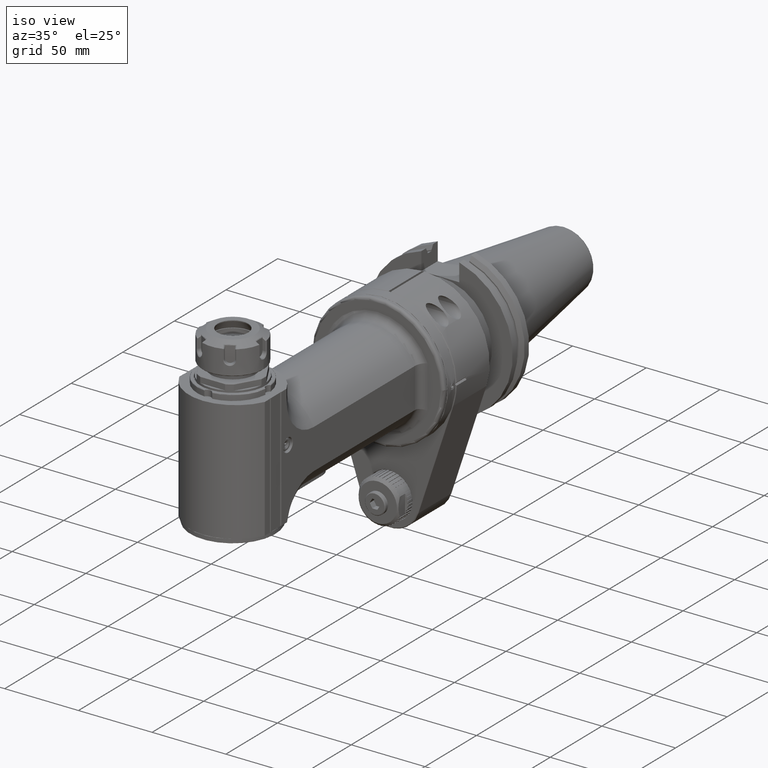
[diagram: clean part render]
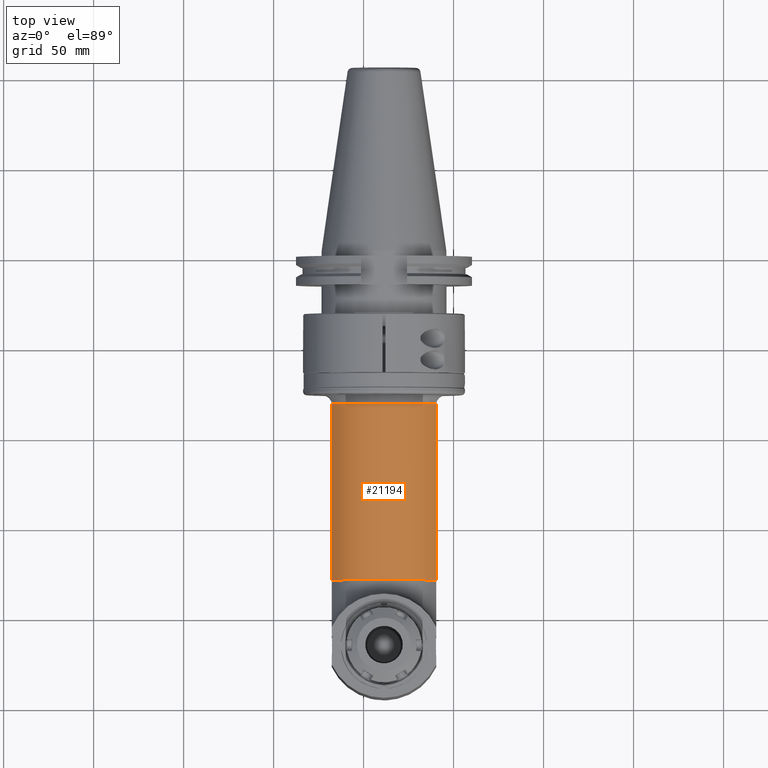
[diagram: tour spotlight — one face highlighted and labeled with its STEP entity id]
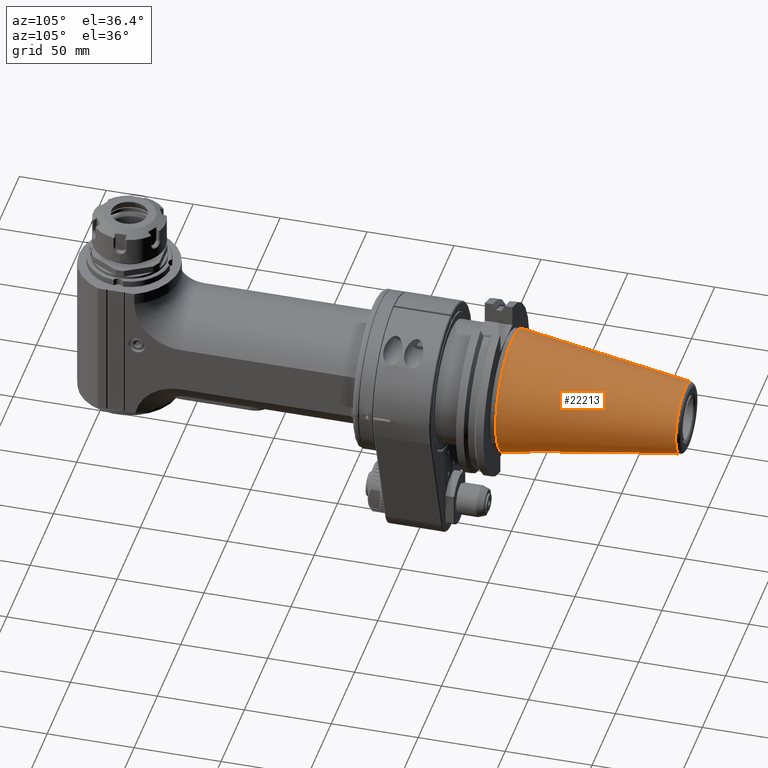
[diagram: tour spotlight — one face highlighted and labeled with its STEP entity id]
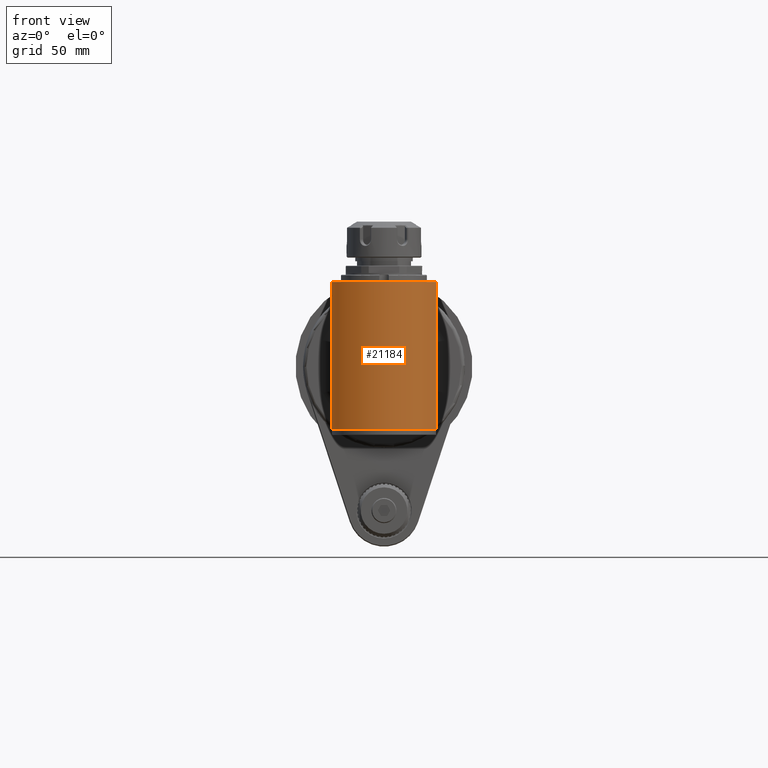
[diagram: tour spotlight — one face highlighted and labeled with its STEP entity id]
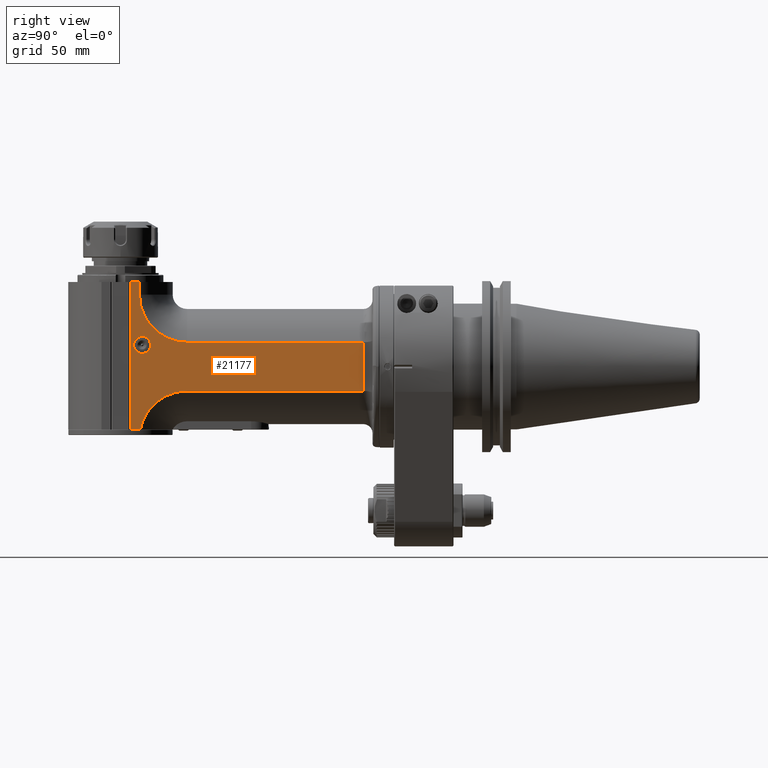
[diagram: tour spotlight — one face highlighted and labeled with its STEP entity id]
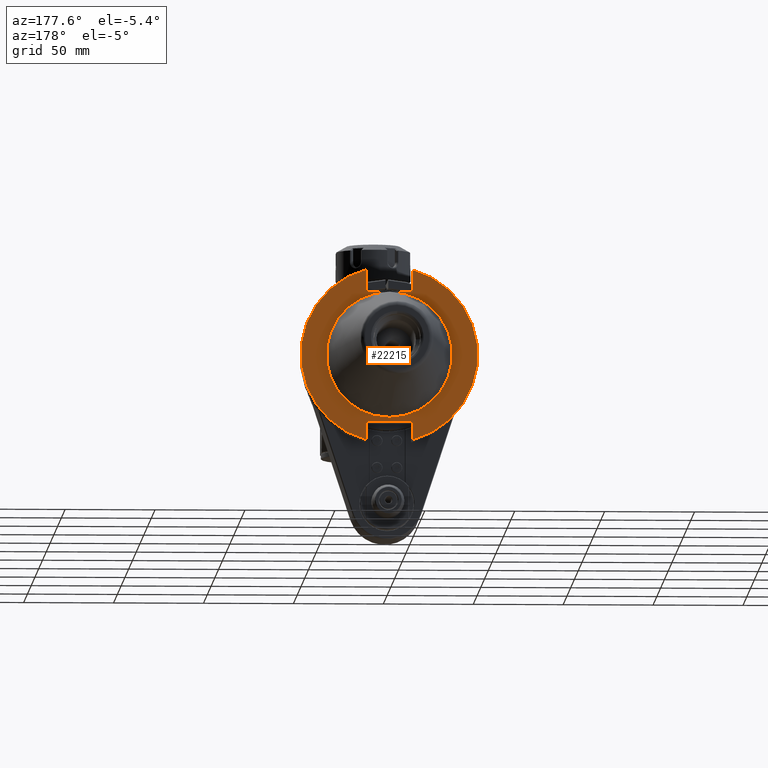
[diagram: tour spotlight — one face highlighted and labeled with its STEP entity id]
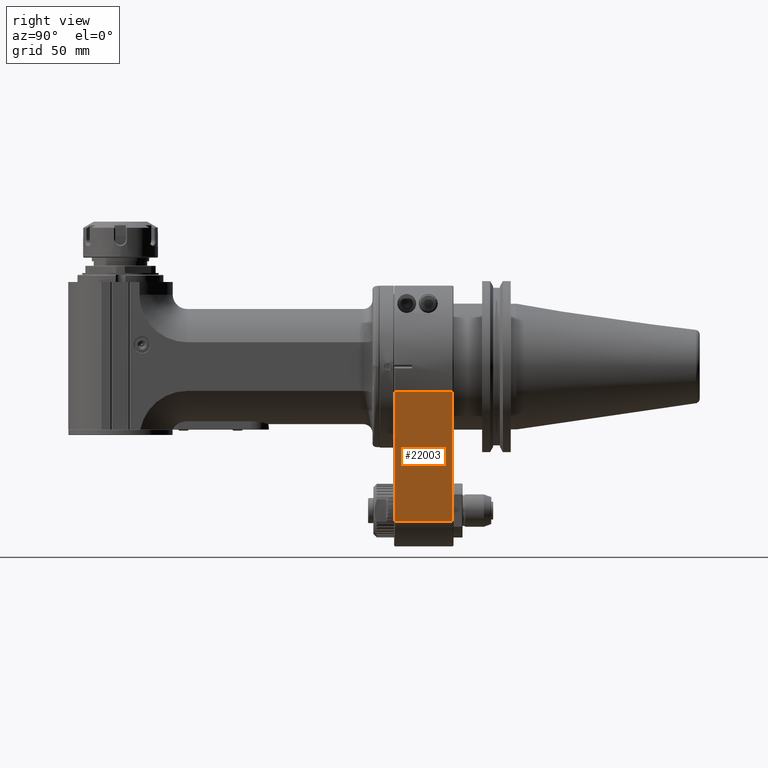
[diagram: tour spotlight — one face highlighted and labeled with its STEP entity id]
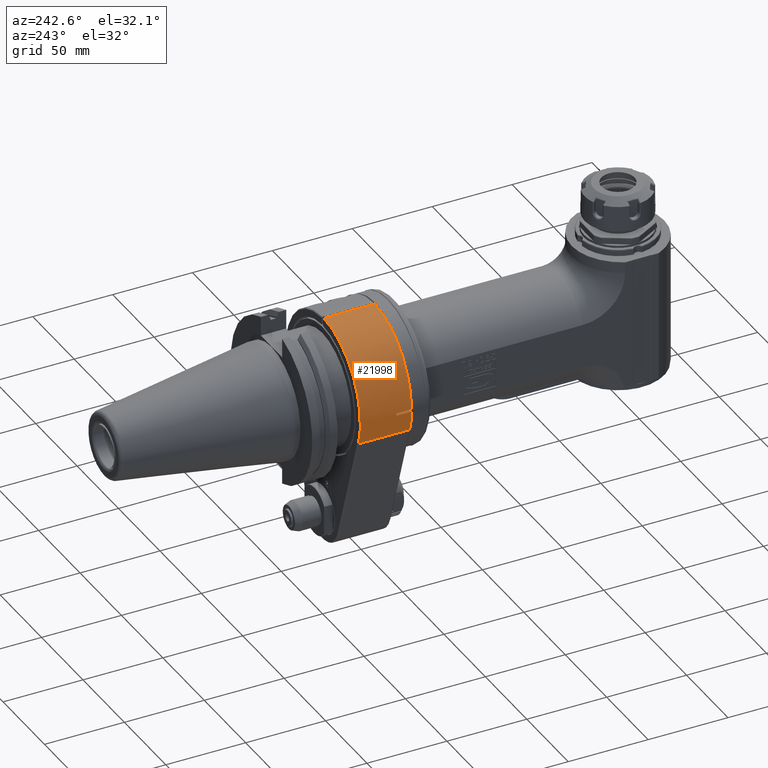
[diagram: tour spotlight — one face highlighted and labeled with its STEP entity id]
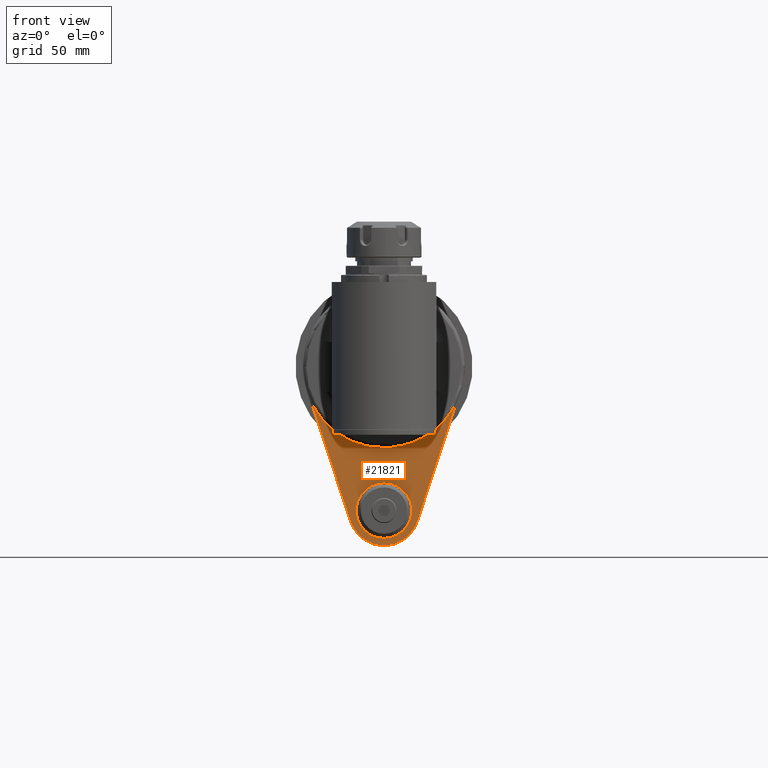
[diagram: tour spotlight — one face highlighted and labeled with its STEP entity id]
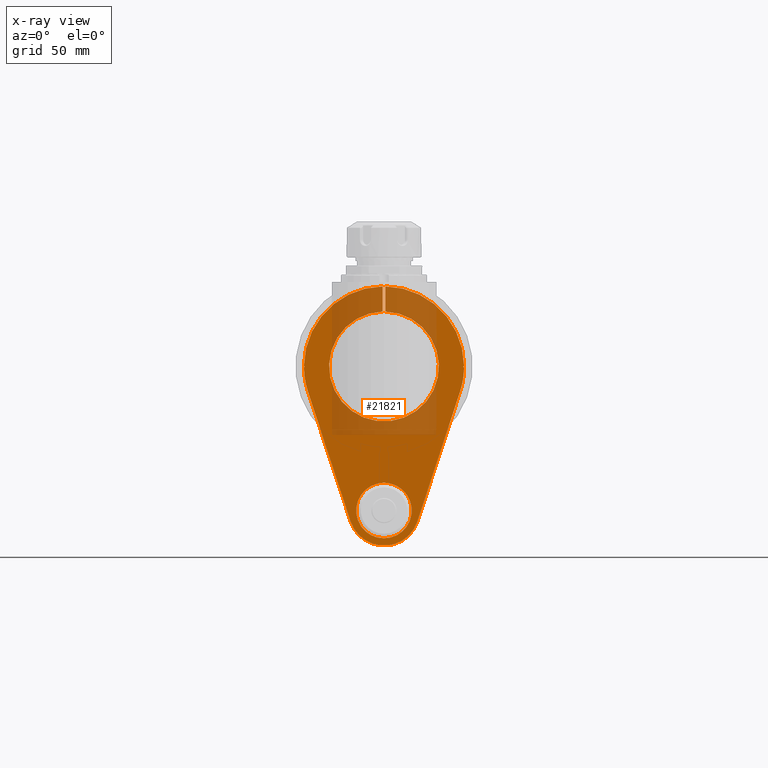
[diagram: x-ray of the same camera — body ghosted, this tour face saturated]
A machine part: a face-by-face anatomy tour. The part has 1214 B-rep faces; the first image is the clean iso view, then the 8 largest visible faces are spotlighted one at a time (largest first), each with its STEP entity span.

Face 1 — top view, entity #21194. In plain terms, the highlighted cylindrical surface (partial cylindrical patch) has radius 32 mm, axis along (0, -1, -0).
Definition (entity closure, byte-faithful):
#1621=FACE_OUTER_BOUND('',#2874,.T.);
#2874=EDGE_LOOP('',(#15327,#15328,#15329,#15330));
#4232=CIRCLE('',#22582,1.25984251968504);
#4233=CIRCLE('',#22584,1.25984251968504);
#4845=LINE('',#30928,#6968);
#5221=LINE('',#32126,#7344);
#6968=VECTOR('',#24301,3.85826771653543);
#7344=VECTOR('',#25123,3.85826771653543);
#9104=VERTEX_POINT('',#30925);
#9105=VERTEX_POINT('',#30927);
#9479=VERTEX_POINT('',#32123);
#9480=VERTEX_POINT('',#32125);
#11230=EDGE_CURVE('',#9105,#9104,#4845,.T.);
#11707=EDGE_CURVE('',#9479,#9480,#5221,.T.);
#11748=EDGE_CURVE('',#9104,#9480,#4232,.T.);
#11749=EDGE_CURVE('',#9105,#9479,#4233,.T.);
#15327=ORIENTED_EDGE('',*,*,#11749,.F.);
#15328=ORIENTED_EDGE('',*,*,#11230,.T.);
#15329=ORIENTED_EDGE('',*,*,#11748,.T.);
#15330=ORIENTED_EDGE('',*,*,#11707,.F.);
#20865=CYLINDRICAL_SURFACE('',#22583,1.25984251968504);
#21194=ADVANCED_FACE('',(#1621),#20865,.T.);
#22582=AXIS2_PLACEMENT_3D('',#32207,#25209,#25210);
#22583=AXIS2_PLACEMENT_3D('',#32208,#25211,#25212);
#22584=AXIS2_PLACEMENT_3D('',#32209,#25213,#25214);
#24301=DIRECTION('',(0.,-1.,0.));
#25123=DIRECTION('',(0.,-1.,0.));
#25209=DIRECTION('center_axis',(0.,1.,0.));
#25210=DIRECTION('ref_axis',(-0.906250000000018,0.,0.422742164327108));
#25211=DIRECTION('center_axis',(0.,-1.,0.));
#25212=DIRECTION('ref_axis',(-1.,0.,0.));
#25213=DIRECTION('center_axis',(0.,1.,0.));
#25214=DIRECTION('ref_axis',(-0.906250000000018,0.,0.422742164327108));
#30925=CARTESIAN_POINT('',(-1.14173228346457,-5.51181102362205,0.532588553483071));
#30927=CARTESIAN_POINT('',(-1.14173228346457,-1.65354330708661,0.532588553483071));
#30928=CARTESIAN_POINT('',(-1.14173228346457,-1.65354330708661,0.532588553483071));
#32123=CARTESIAN_POINT('',(1.14173228346457,-1.65354330708661,0.532588553483071));
#32125=CARTESIAN_POINT('',(1.14173228346457,-5.51181102362205,0.532588553483071));
#32126=CARTESIAN_POINT('',(1.14173228346457,-1.65354330708661,0.532588553483071));
#32207=CARTESIAN_POINT('Origin',(0.,-5.51181102362205,0.));
#32208=CARTESIAN_POINT('Origin',(0.,0.348425196850394,0.));
#32209=CARTESIAN_POINT('Origin',(0.,-1.65354330708661,0.));

Face 2 — auxiliary view, entity #22213. In plain terms, the highlighted conical surface has half-angle 8.3 deg.
Definition (entity closure, byte-faithful):
#228=CONICAL_SURFACE('',#24165,1.08880016561102,0.144862327915529);
#2640=FACE_OUTER_BOUND('',#3976,.T.);
#3976=EDGE_LOOP('',(#20637,#20638,#20639,#20640,#20641));
#4788=CIRCLE('',#24162,0.802600331222047);
#4790=CIRCLE('',#24164,0.802600331222047);
#4791=CIRCLE('',#24166,1.375);
#6902=LINE('',#42081,#9025);
#9025=VECTOR('',#30032,1.08880016561102);
#11122=VERTEX_POINT('',#42073);
#11123=VERTEX_POINT('',#42074);
#11124=VERTEX_POINT('',#42079);
#14305=EDGE_CURVE('',#11122,#11123,#4788,.T.);
#14307=EDGE_CURVE('',#11123,#11122,#4790,.T.);
#14308=EDGE_CURVE('',#11124,#11124,#4791,.T.);
#14309=EDGE_CURVE('',#11124,#11123,#6902,.T.);
#20637=ORIENTED_EDGE('',*,*,#14308,.F.);
#20638=ORIENTED_EDGE('',*,*,#14309,.T.);
#20639=ORIENTED_EDGE('',*,*,#14307,.T.);
#20640=ORIENTED_EDGE('',*,*,#14305,.T.);
#20641=ORIENTED_EDGE('',*,*,#14309,.F.);
#22213=ADVANCED_FACE('',(#2640),#228,.T.);
#24162=AXIS2_PLACEMENT_3D('',#42075,#30022,#30023);
#24164=AXIS2_PLACEMENT_3D('',#42077,#30026,#30027);
#24165=AXIS2_PLACEMENT_3D('',#42078,#30028,#30029);
#24166=AXIS2_PLACEMENT_3D('',#42080,#30030,#30031);
#30022=DIRECTION('center_axis',(0.,-1.,0.));
#30023=DIRECTION('ref_axis',(0.00108059556212205,0.,0.999999416156445));
#30026=DIRECTION('center_axis',(0.,-1.,0.));
#30027=DIRECTION('ref_axis',(0.00108059556212205,0.,0.999999416156445));
#30028=DIRECTION('center_axis',(0.,-1.,0.));
#30029=DIRECTION('ref_axis',(0.,0.,1.));
#30030=DIRECTION('center_axis',(0.,-1.,0.));
#30031=DIRECTION('ref_axis',(0.,0.,-1.));
#30032=DIRECTION('',(-1.76785359492914E-17,0.989525789068969,0.144356201000973));
#42073=CARTESIAN_POINT('',(0.000867286356076132,6.60082246072835,0.802599862629016));
#42074=CARTESIAN_POINT('',(9.82901926625859E-17,6.60082246072837,-0.802600331222189));
#42075=CARTESIAN_POINT('Origin',(0.,6.60082246072835,-4.82144015412205E-16));
#42077=CARTESIAN_POINT('Origin',(0.,6.60082246072835,-4.82144015412205E-16));
#42078=CARTESIAN_POINT('Origin',(0.,4.63899390752953,-4.82144015412205E-16));
#42079=CARTESIAN_POINT('',(0.,2.67716535433071,-1.375));
#42080=CARTESIAN_POINT('Origin',(0.,2.67716535433071,-4.82144015412205E-16));
#42081=CARTESIAN_POINT('',(1.33339563772665E-16,4.63899390752953,-1.08880016561102));

Face 3 — front view, entity #21184. In plain terms, the highlighted cylindrical surface (partial cylindrical patch) has radius 32 mm, axis along (0, -0, 1).
Definition (entity closure, byte-faithful):
#1611=FACE_OUTER_BOUND('',#2863,.T.);
#2863=EDGE_LOOP('',(#15267,#15268,#15269,#15270));
#4122=CIRCLE('',#22333,1.25984251968504);
#4221=CIRCLE('',#22562,1.25984251968504);
#5236=LINE('',#32159,#7359);
#5237=LINE('',#32163,#7360);
#7359=VECTOR('',#25154,3.22834645669291);
#7360=VECTOR('',#25159,3.22834645669291);
#9291=VERTEX_POINT('',#31381);
#9292=VERTEX_POINT('',#31383);
#9490=VERTEX_POINT('',#32157);
#9491=VERTEX_POINT('',#32161);
#11417=EDGE_CURVE('',#9292,#9291,#4122,.T.);
#11724=EDGE_CURVE('',#9291,#9490,#5236,.T.);
#11725=EDGE_CURVE('',#9491,#9490,#4221,.T.);
#11726=EDGE_CURVE('',#9292,#9491,#5237,.T.);
#15267=ORIENTED_EDGE('',*,*,#11417,.T.);
#15268=ORIENTED_EDGE('',*,*,#11724,.T.);
#15269=ORIENTED_EDGE('',*,*,#11725,.F.);
#15270=ORIENTED_EDGE('',*,*,#11726,.F.);
#20863=CYLINDRICAL_SURFACE('',#22561,1.25984251968504);
#21184=ADVANCED_FACE('',(#1611),#20863,.T.);
#22333=AXIS2_PLACEMENT_3D('',#31384,#24491,#24492);
#22561=AXIS2_PLACEMENT_3D('',#32160,#25155,#25156);
#22562=AXIS2_PLACEMENT_3D('',#32162,#25157,#25158);
#24491=DIRECTION('center_axis',(0.,0.,1.));
#24492=DIRECTION('ref_axis',(-0.906250000000018,-0.422742164327108,0.));
#25154=DIRECTION('',(0.,0.,1.));
#25155=DIRECTION('center_axis',(0.,0.,1.));
#25156=DIRECTION('ref_axis',(-1.,0.,0.));
#25157=DIRECTION('center_axis',(0.,0.,1.));
#25158=DIRECTION('ref_axis',(-0.906250000000018,-0.422742164327108,0.));
#25159=DIRECTION('',(0.,0.,1.));
#31381=CARTESIAN_POINT('',(1.14173228346457,-7.38298225427165,-1.37795275590551));
#31383=CARTESIAN_POINT('',(-1.14173228346457,-7.38298225427165,-1.37795275590551));
#31384=CARTESIAN_POINT('Origin',(0.,-6.8503937007874,-1.37795275590551));
#32157=CARTESIAN_POINT('',(1.14173228346457,-7.38298225427165,1.8503937007874));
#32159=CARTESIAN_POINT('',(1.14173228346457,-7.38298225427165,-1.37795275590551));
#32160=CARTESIAN_POINT('Origin',(0.,-6.8503937007874,-2.16535433070866));
#32161=CARTESIAN_POINT('',(-1.14173228346457,-7.38298225427165,1.8503937007874));
#32162=CARTESIAN_POINT('Origin',(0.,-6.8503937007874,1.8503937007874));
#32163=CARTESIAN_POINT('',(-1.14173228346457,-7.38298225427165,-1.37795275590551));

Face 4 — right view, entity #21177. In plain terms, the highlighted planar face has unit normal (1, 0, -0).
Definition (entity closure, byte-faithful):
#276=FACE_BOUND('',#2856,.T.);
#467=PLANE('',#22552);
#1604=FACE_OUTER_BOUND('',#2855,.T.);
#2855=EDGE_LOOP('',(#15233,#15234,#15235,#15236,#15237,#15238,#15239,#15240,
#15241));
#2856=EDGE_LOOP('',(#15242));
#4177=CIRCLE('',#22454,1.04221459612323);
#4219=CIRCLE('',#22553,1.04221459612323);
#4220=CIRCLE('',#22554,0.185042884422681);
#4833=LINE('',#30410,#6956);
#5022=LINE('',#31370,#7145);
#5220=LINE('',#32124,#7343);
#5221=LINE('',#32126,#7344);
#5222=LINE('',#32130,#7345);
#5223=LINE('',#32132,#7346);
#5224=LINE('',#32133,#7347);
#6956=VECTOR('',#24267,3.85826771653543);
#7145=VECTOR('',#24484,0.216701967421378);
#7343=VECTOR('',#25122,1.06517710696614);
#7344=VECTOR('',#25123,3.85826771653543);
#7345=VECTOR('',#25126,0.275590551181102);
#7346=VECTOR('',#25127,0.197942884191693);
#7347=VECTOR('',#25128,3.22834645669291);
#9085=VERTEX_POINT('',#30407);
#9086=VERTEX_POINT('',#30409);
#9284=VERTEX_POINT('',#31286);
#9285=VERTEX_POINT('',#31369);
#9479=VERTEX_POINT('',#32123);
#9480=VERTEX_POINT('',#32125);
#9481=VERTEX_POINT('',#32127);
#9482=VERTEX_POINT('',#32129);
#9483=VERTEX_POINT('',#32131);
#9484=VERTEX_POINT('',#32134);
#11203=EDGE_CURVE('',#9085,#9086,#4833,.T.);
#11410=EDGE_CURVE('',#9285,#9284,#5022,.T.);
#11571=EDGE_CURVE('',#9086,#9284,#4177,.T.);
#11706=EDGE_CURVE('',#9085,#9479,#5220,.T.);
#11707=EDGE_CURVE('',#9479,#9480,#5221,.T.);
#11708=EDGE_CURVE('',#9480,#9481,#4219,.T.);
#11709=EDGE_CURVE('',#9481,#9482,#5222,.T.);
#11710=EDGE_CURVE('',#9483,#9482,#5223,.T.);
#11711=EDGE_CURVE('',#9285,#9483,#5224,.T.);
#11712=EDGE_CURVE('',#9484,#9484,#4220,.T.);
#15233=ORIENTED_EDGE('',*,*,#11410,.T.);
#15234=ORIENTED_EDGE('',*,*,#11571,.F.);
#15235=ORIENTED_EDGE('',*,*,#11203,.F.);
#15236=ORIENTED_EDGE('',*,*,#11706,.T.);
#15237=ORIENTED_EDGE('',*,*,#11707,.T.);
#15238=ORIENTED_EDGE('',*,*,#11708,.T.);
#15239=ORIENTED_EDGE('',*,*,#11709,.T.);
#15240=ORIENTED_EDGE('',*,*,#11710,.F.);
#15241=ORIENTED_EDGE('',*,*,#11711,.F.);
#15242=ORIENTED_EDGE('',*,*,#11712,.T.);
#21177=ADVANCED_FACE('',(#1604,#276),#467,.T.);
#22454=AXIS2_PLACEMENT_3D('',#31705,#24832,#24833);
#22552=AXIS2_PLACEMENT_3D('',#32122,#25120,#25121);
#22553=AXIS2_PLACEMENT_3D('',#32128,#25124,#25125);
#22554=AXIS2_PLACEMENT_3D('',#32135,#25129,#25130);
#24267=DIRECTION('',(0.,-1.,0.));
#24484=DIRECTION('',(0.,1.,0.));
#24832=DIRECTION('center_axis',(1.,0.,0.));
#24833=DIRECTION('ref_axis',(0.,0.,1.));
#25120=DIRECTION('center_axis',(1.,0.,0.));
#25121=DIRECTION('ref_axis',(0.,1.,0.));
#25122=DIRECTION('',(0.,0.,1.));
#25123=DIRECTION('',(0.,-1.,0.));
#25124=DIRECTION('center_axis',(-1.,0.,0.));
#25125=DIRECTION('ref_axis',(0.,0.,-1.));
#25126=DIRECTION('',(0.,0.,1.));
#25127=DIRECTION('',(0.,1.,0.));
#25128=DIRECTION('',(0.,0.,1.));
#25129=DIRECTION('center_axis',(-1.,0.,0.));
#25130=DIRECTION('ref_axis',(0.,0.,-1.));
#30407=CARTESIAN_POINT('',(1.14173228346457,-1.65354330708661,-0.532588553483071));
#30409=CARTESIAN_POINT('',(1.14173228346457,-5.51181102362205,-0.532588553483071));
#30410=CARTESIAN_POINT('',(1.14173228346457,-1.65354330708661,-0.532588553483071));
#31286=CARTESIAN_POINT('',(1.14173228346457,-6.53526653651575,-1.37795275590551));
#31369=CARTESIAN_POINT('',(1.14173228346457,-6.75196850393701,-1.37795275590551));
#31370=CARTESIAN_POINT('',(1.14173228346457,-6.75196850393701,-1.37795275590551));
#31705=CARTESIAN_POINT('Origin',(1.14173228346457,-5.51181102362205,-1.5748031496063));
#32122=CARTESIAN_POINT('Origin',(1.14173228346457,-7.38298225427165,-2.16535433070866));
#32123=CARTESIAN_POINT('',(1.14173228346457,-1.65354330708661,0.532588553483071));
#32124=CARTESIAN_POINT('',(1.14173228346457,-1.65354330708661,-0.532588553483071));
#32125=CARTESIAN_POINT('',(1.14173228346457,-5.51181102362205,0.532588553483071));
#32126=CARTESIAN_POINT('',(1.14173228346457,-1.65354330708661,0.532588553483071));
#32127=CARTESIAN_POINT('',(1.14173228346457,-6.55402561974409,1.5748031496063));
#32128=CARTESIAN_POINT('Origin',(1.14173228346457,-5.51181102362205,1.5748031496063));
#32129=CARTESIAN_POINT('',(1.14173228346457,-6.55402561974409,1.8503937007874));
#32130=CARTESIAN_POINT('',(1.14173228346457,-6.55402561974409,1.5748031496063));
#32131=CARTESIAN_POINT('',(1.14173228346457,-6.75196850393701,1.8503937007874));
#32132=CARTESIAN_POINT('',(1.14173228346457,-6.75196850393701,1.8503937007874));
#32133=CARTESIAN_POINT('',(1.14173228346457,-6.75196850393701,-1.37795275590551));
#32134=CARTESIAN_POINT('',(1.14173228346457,-6.49606299212598,0.657483829304571));
#32135=CARTESIAN_POINT('Origin',(1.14173228346457,-6.49606299212598,0.47244094488189));

Face 5 — auxiliary view, entity #22215. In plain terms, the highlighted planar face has unit normal (0, -1, 0).
Definition (entity closure, byte-faithful):
#361=FACE_BOUND('',#3979,.T.);
#1137=PLANE('',#24169);
#2642=FACE_OUTER_BOUND('',#3978,.T.);
#3978=EDGE_LOOP('',(#20646,#20647,#20648,#20649,#20650,#20651,#20652,#20653));
#3979=EDGE_LOOP('',(#20654));
#4792=CIRCLE('',#24168,1.375);
#4793=CIRCLE('',#24170,1.93740157480315);
#4794=CIRCLE('',#24171,1.93740157480315);
#6904=LINE('',#42089,#9027);
#6905=LINE('',#42093,#9028);
#6906=LINE('',#42095,#9029);
#6907=LINE('',#42097,#9030);
#6908=LINE('',#42101,#9031);
#6909=LINE('',#42102,#9032);
#9027=VECTOR('',#30040,0.405616076662205);
#9028=VECTOR('',#30043,0.480419226268504);
#9029=VECTOR('',#30044,1.01181102362205);
#9030=VECTOR('',#30045,0.480419226268504);
#9031=VECTOR('',#30048,0.405616076662205);
#9032=VECTOR('',#30049,1.01181102362205);
#11125=VERTEX_POINT('',#42083);
#11126=VERTEX_POINT('',#42087);
#11127=VERTEX_POINT('',#42088);
#11128=VERTEX_POINT('',#42090);
#11129=VERTEX_POINT('',#42092);
#11130=VERTEX_POINT('',#42094);
#11131=VERTEX_POINT('',#42096);
#11132=VERTEX_POINT('',#42098);
#11133=VERTEX_POINT('',#42100);
#14310=EDGE_CURVE('',#11125,#11125,#4792,.T.);
#14312=EDGE_CURVE('',#11126,#11127,#6904,.T.);
#14313=EDGE_CURVE('',#11128,#11127,#4793,.T.);
#14314=EDGE_CURVE('',#11129,#11128,#6905,.T.);
#14315=EDGE_CURVE('',#11129,#11130,#6906,.T.);
#14316=EDGE_CURVE('',#11130,#11131,#6907,.T.);
#14317=EDGE_CURVE('',#11132,#11131,#4794,.T.);
#14318=EDGE_CURVE('',#11133,#11132,#6908,.T.);
#14319=EDGE_CURVE('',#11133,#11126,#6909,.T.);
#20646=ORIENTED_EDGE('',*,*,#14312,.T.);
#20647=ORIENTED_EDGE('',*,*,#14313,.F.);
#20648=ORIENTED_EDGE('',*,*,#14314,.F.);
#20649=ORIENTED_EDGE('',*,*,#14315,.T.);
#20650=ORIENTED_EDGE('',*,*,#14316,.T.);
#20651=ORIENTED_EDGE('',*,*,#14317,.F.);
#20652=ORIENTED_EDGE('',*,*,#14318,.F.);
#20653=ORIENTED_EDGE('',*,*,#14319,.T.);
#20654=ORIENTED_EDGE('',*,*,#14310,.F.);
#22215=ADVANCED_FACE('',(#2642,#361),#1137,.F.);
#24168=AXIS2_PLACEMENT_3D('',#42084,#30035,#30036);
#24169=AXIS2_PLACEMENT_3D('',#42086,#30038,#30039);
#24170=AXIS2_PLACEMENT_3D('',#42091,#30041,#30042);
#24171=AXIS2_PLACEMENT_3D('',#42099,#30046,#30047);
#30035=DIRECTION('center_axis',(0.,1.,0.));
#30036=DIRECTION('ref_axis',(0.,0.,1.));
#30038=DIRECTION('center_axis',(0.,-1.,0.));
#30039=DIRECTION('ref_axis',(0.,0.,1.));
#30040=DIRECTION('',(-3.086273194391E-14,0.,-1.));
#30041=DIRECTION('center_axis',(0.,-1.,0.));
#30042=DIRECTION('ref_axis',(-0.261125787441599,0.,0.965304782508097));
#30043=DIRECTION('',(-2.591171263943E-14,0.,1.));
#30044=DIRECTION('',(1.,0.,0.));
#30045=DIRECTION('',(2.620285547808E-14,0.,1.));
#30046=DIRECTION('center_axis',(0.,-1.,0.));
#30047=DIRECTION('ref_axis',(0.261125787441599,0.,-0.965304782508097));
#30048=DIRECTION('',(3.034547945323E-14,0.,-1.));
#30049=DIRECTION('',(-1.,0.,0.));
#42083=CARTESIAN_POINT('',(0.,2.5511811023622,-1.375));
#42084=CARTESIAN_POINT('Origin',(0.,2.5511811023622,-4.82144015412205E-16));
#42086=CARTESIAN_POINT('Origin',(0.,2.5511811023622,2.39709326748032E-17));
#42087=CARTESIAN_POINT('',(-0.505905511811024,2.5511811023622,-1.46456692913386));
#42088=CARTESIAN_POINT('',(-0.505905511811024,2.5511811023622,-1.87018300579606));
#42089=CARTESIAN_POINT('',(-0.505905511811024,2.5511811023622,-1.46456692913386));
#42090=CARTESIAN_POINT('',(-0.505905511811024,2.5511811023622,1.87018300579606));
#42091=CARTESIAN_POINT('Origin',(0.,2.5511811023622,-4.82144015412205E-16));
#42092=CARTESIAN_POINT('',(-0.505905511811024,2.5511811023622,1.38976377952756));
#42093=CARTESIAN_POINT('',(-0.505905511811024,2.5511811023622,1.38976377952756));
#42094=CARTESIAN_POINT('',(0.505905511811024,2.5511811023622,1.38976377952756));
#42095=CARTESIAN_POINT('',(-0.505905511811024,2.5511811023622,1.38976377952756));
#42096=CARTESIAN_POINT('',(0.505905511811024,2.5511811023622,1.87018300579606));
#42097=CARTESIAN_POINT('',(0.505905511811024,2.5511811023622,1.38976377952756));
#42098=CARTESIAN_POINT('',(0.505905511811024,2.5511811023622,-1.87018300579606));
#42099=CARTESIAN_POINT('Origin',(0.,2.5511811023622,-4.82144015412205E-16));
#42100=CARTESIAN_POINT('',(0.505905511811024,2.5511811023622,-1.46456692913386));
#42101=CARTESIAN_POINT('',(0.505905511811024,2.5511811023622,-1.46456692913386));
#42102=CARTESIAN_POINT('',(0.505905511811024,2.5511811023622,-1.46456692913386));

Face 6 — right view, entity #22003. In plain terms, the highlighted planar face has unit normal (0.9499, 0, -0.3125).
Definition (entity closure, byte-faithful):
#986=PLANE('',#23853);
#2430=FACE_OUTER_BOUND('',#3754,.T.);
#3754=EDGE_LOOP('',(#19611,#19612,#19613,#19614));
#6363=LINE('',#39454,#8486);
#6601=LINE('',#41117,#8724);
#6602=LINE('',#41119,#8725);
#6603=LINE('',#41120,#8726);
#8486=VECTOR('',#28205,0.393700787401575);
#8724=VECTOR('',#29103,1.25983200986969);
#8725=VECTOR('',#29106,0.393700787401575);
#8726=VECTOR('',#29107,1.25983158248346);
#10619=VERTEX_POINT('',#39449);
#10620=VERTEX_POINT('',#39453);
#10638=VERTEX_POINT('',#39507);
#10900=VERTEX_POINT('',#41113);
#13439=EDGE_CURVE('',#10620,#10619,#6363,.T.);
#13889=EDGE_CURVE('',#10619,#10900,#6601,.T.);
#13890=EDGE_CURVE('',#10900,#10638,#6602,.T.);
#13891=EDGE_CURVE('',#10638,#10620,#6603,.T.);
#19611=ORIENTED_EDGE('',*,*,#13890,.T.);
#19612=ORIENTED_EDGE('',*,*,#13891,.T.);
#19613=ORIENTED_EDGE('',*,*,#13439,.T.);
#19614=ORIENTED_EDGE('',*,*,#13889,.T.);
#22003=ADVANCED_FACE('',(#2430),#986,.T.);
#23853=AXIS2_PLACEMENT_3D('',#41118,#29104,#29105);
#28205=DIRECTION('',(-0.31249999999999,1.40130751937532E-14,-0.94991775959817));
#29103=DIRECTION('',(0.,1.,0.));
#29104=DIRECTION('center_axis',(0.94991775959817,0.,-0.31249999999999));
#29105=DIRECTION('ref_axis',(-0.31249999999999,0.,-0.94991775959817));
#29106=DIRECTION('',(0.31249999999999,1.40130751937532E-14,0.94991775959817));
#29107=DIRECTION('',(4.996046983514E-14,-1.,-1.6264908513E-14));
#39449=CARTESIAN_POINT('',(0.747966744983022,0.0196899901920695,-3.39566929069518));
#39453=CARTESIAN_POINT('',(1.68292516847874,0.0196902039079772,-0.553641735632901));
#39454=CARTESIAN_POINT('',(1.44918555844218,0.0196850393702112,-1.26414862204727));
#39507=CARTESIAN_POINT('',(1.68292516847869,1.27952239451712,-0.553641735633017));
#41113=CARTESIAN_POINT('',(0.74796674056908,1.27952261953063,-3.39566928912586));
#41117=CARTESIAN_POINT('',(0.747966740527953,0.0196902942776929,-3.39566928922953));
#41118=CARTESIAN_POINT('Origin',(1.68292516464252,0.,-0.553641732283464));
#41119=CARTESIAN_POINT('',(1.44918555844218,1.27952755905499,-1.26414862204727));
#41120=CARTESIAN_POINT('',(1.68292516401614,1.27952209045433,-0.553641734164961));

Face 7 — auxiliary view, entity #21998. In plain terms, the highlighted cylindrical surface (partial cylindrical patch) has radius 45 mm, axis along (0, 1, 0).
Definition (entity closure, byte-faithful):
#2425=FACE_OUTER_BOUND('',#3749,.T.);
#3749=EDGE_LOOP('',(#19587,#19588,#19589,#19590,#19591,#19592,#19593,#19594));
#4534=CIRCLE('',#23514,1.77165354330709);
#4536=CIRCLE('',#23518,1.77165354330709);
#4551=CIRCLE('',#23544,1.77165354330709);
#4693=CIRCLE('',#23846,1.77165354330709);
#6356=LINE('',#39431,#8479);
#6358=LINE('',#39438,#8481);
#6385=LINE('',#39542,#8508);
#6596=LINE('',#41105,#8719);
#8479=VECTOR('',#28178,0.374005691783858);
#8481=VECTOR('',#28186,0.374005673056969);
#8508=VECTOR('',#28273,0.393700787401575);
#8719=VECTOR('',#29088,1.25983183669843);
#10612=VERTEX_POINT('',#39425);
#10614=VERTEX_POINT('',#39429);
#10615=VERTEX_POINT('',#39433);
#10616=VERTEX_POINT('',#39437);
#10617=VERTEX_POINT('',#39441);
#10649=VERTEX_POINT('',#39533);
#10650=VERTEX_POINT('',#39537);
#10651=VERTEX_POINT('',#39541);
#13428=EDGE_CURVE('',#10614,#10612,#6356,.T.);
#13429=EDGE_CURVE('',#10612,#10615,#4534,.T.);
#13431=EDGE_CURVE('',#10615,#10616,#6358,.T.);
#13433=EDGE_CURVE('',#10617,#10616,#4536,.T.);
#13478=EDGE_CURVE('',#10649,#10650,#4551,.T.);
#13479=EDGE_CURVE('',#10649,#10651,#6385,.T.);
#13882=EDGE_CURVE('',#10614,#10651,#4693,.T.);
#13883=EDGE_CURVE('',#10617,#10650,#6596,.T.);
#19587=ORIENTED_EDGE('',*,*,#13429,.F.);
#19588=ORIENTED_EDGE('',*,*,#13428,.F.);
#19589=ORIENTED_EDGE('',*,*,#13882,.T.);
#19590=ORIENTED_EDGE('',*,*,#13479,.F.);
#19591=ORIENTED_EDGE('',*,*,#13478,.T.);
#19592=ORIENTED_EDGE('',*,*,#13883,.F.);
#19593=ORIENTED_EDGE('',*,*,#13433,.T.);
#19594=ORIENTED_EDGE('',*,*,#13431,.F.);
#20974=CYLINDRICAL_SURFACE('',#23847,1.77165354330709);
#21998=ADVANCED_FACE('',(#2425),#20974,.T.);
#23514=AXIS2_PLACEMENT_3D('',#39434,#28181,#28182);
#23518=AXIS2_PLACEMENT_3D('',#39442,#28191,#28192);
#23544=AXIS2_PLACEMENT_3D('',#39539,#28269,#28270);
#23846=AXIS2_PLACEMENT_3D('',#41103,#29084,#29085);
#23847=AXIS2_PLACEMENT_3D('',#41104,#29086,#29087);
#28178=DIRECTION('',(-1.037480124355E-10,1.,-4.718633579152E-9));
#28181=DIRECTION('center_axis',(0.,-1.,0.));
#28182=DIRECTION('ref_axis',(-0.999758397003231,0.,0.0219806192253507));
#28186=DIRECTION('',(-4.241007258163E-10,-1.,1.928899910892E-8));
#28191=DIRECTION('center_axis',(0.,1.,0.));
#28192=DIRECTION('ref_axis',(-0.949917759345018,0.,-0.312500000769506));
#28269=DIRECTION('center_axis',(0.,-1.,0.));
#28270=DIRECTION('ref_axis',(-1.,0.,0.));
#28273=DIRECTION('',(0.,-1.,0.));
#29084=DIRECTION('center_axis',(0.,1.,0.));
#29085=DIRECTION('ref_axis',(-0.999758397003229,0.,0.0219806192254406));
#29086=DIRECTION('center_axis',(0.,1.,0.));
#29087=DIRECTION('ref_axis',(-0.814950476315913,0.,0.579530604155178));
#29088=DIRECTION('',(-3.308492668145E-14,1.,-1.088027790195E-14));
#39425=CARTESIAN_POINT('',(-1.77122550650197,0.393700787401575,0.0389420419348228));
#39429=CARTESIAN_POINT('',(-1.77122550623387,0.0196950989441183,0.0389420442271162));
#39431=CARTESIAN_POINT('',(-1.77122550646299,0.0196950956177047,0.0389420436996181));
#39433=CARTESIAN_POINT('',(-1.77122550650197,0.393700787401575,-0.0389420419348819));
#39434=CARTESIAN_POINT('Origin',(0.,0.393700787401575,0.));
#39437=CARTESIAN_POINT('',(-1.77122550748113,0.0196951004901811,-0.0389420322837596));
#39438=CARTESIAN_POINT('',(-1.77122550650197,0.393700787401575,-0.0389420419348819));
#39441=CARTESIAN_POINT('',(-1.68292516855909,0.0196900805167875,-0.55364173520559));
#39442=CARTESIAN_POINT('Origin',(1.26932585177598E-14,0.019695099298374,
2.2711491480126E-14));
#39533=CARTESIAN_POINT('',(-0.0295275590555783,1.27951749917398,1.77140746320539));
#39537=CARTESIAN_POINT('',(-1.6829251641574,1.27952252909101,-0.553641733757493));
#39539=CARTESIAN_POINT('Origin',(2.87434118501378E-14,1.27951749912677,
9.1090739500748E-15));
#39541=CARTESIAN_POINT('',(-0.0295275590555785,0.0196950992511791,1.77140746320538));
#39542=CARTESIAN_POINT('',(-0.0295275590551181,0.,1.77140746322488));
#41103=CARTESIAN_POINT('Origin',(1.26932585177598E-14,0.0196950992983504,
2.2711491480126E-14));
#41104=CARTESIAN_POINT('Origin',(0.,0.,0.));
#41105=CARTESIAN_POINT('',(-1.68292516415,0.0196903808633268,-0.553641733755118));

Face 8 — front view, entity #21821. An x-ray twin of the same camera follows (body ghosted, this face saturated) — the face is partly hidden behind the body. In plain terms, the highlighted planar face has unit normal (0, 1, 0).
Definition (entity closure, byte-faithful):
#325=FACE_BOUND('',#3549,.T.);
#894=PLANE('',#23504);
#2248=FACE_OUTER_BOUND('',#3548,.T.);
#3548=EDGE_LOOP('',(#18669,#18670,#18671,#18672,#18673,#18674,#18675,#18676,
#18677,#18678,#18679,#18680,#18681,#18682));
#3549=EDGE_LOOP('',(#18683));
#4526=CIRCLE('',#23503,0.608262234885039);
#4527=CIRCLE('',#23505,1.75195855584213);
#4528=CIRCLE('',#23506,0.767706903481496);
#4529=CIRCLE('',#23507,1.75195831207717);
#4530=CIRCLE('',#23508,1.75195831207717);
#4531=CIRCLE('',#23509,1.20078639924291);
#4532=CIRCLE('',#23510,1.75195855584213);
#6346=LINE('',#39398,#8469);
#6347=LINE('',#39400,#8470);
#6348=LINE('',#39404,#8471);
#6349=LINE('',#39408,#8472);
#6350=LINE('',#39412,#8473);
#6351=LINE('',#39414,#8474);
#6352=LINE('',#39418,#8475);
#6353=LINE('',#39422,#8476);
#8469=VECTOR('',#28152,0.0276702916381148);
#8470=VECTOR('',#28153,0.0276702590287167);
#8471=VECTOR('',#28156,0.393700787401575);
#8472=VECTOR('',#28159,0.393700787401575);
#8473=VECTOR('',#28162,0.0276699507666699);
#8474=VECTOR('',#28163,0.0276699180772639);
#8475=VECTOR('',#28166,0.393700787401575);
#8476=VECTOR('',#28169,0.393700787401575);
#10597=VERTEX_POINT('',#39392);
#10598=VERTEX_POINT('',#39396);
#10599=VERTEX_POINT('',#39397);
#10600=VERTEX_POINT('',#39399);
#10601=VERTEX_POINT('',#39401);
#10602=VERTEX_POINT('',#39403);
#10603=VERTEX_POINT('',#39405);
#10604=VERTEX_POINT('',#39407);
#10605=VERTEX_POINT('',#39409);
#10606=VERTEX_POINT('',#39411);
#10607=VERTEX_POINT('',#39413);
#10608=VERTEX_POINT('',#39415);
#10609=VERTEX_POINT('',#39417);
#10610=VERTEX_POINT('',#39419);
#10611=VERTEX_POINT('',#39421);
#13410=EDGE_CURVE('',#10597,#10597,#4526,.T.);
#13411=EDGE_CURVE('',#10598,#10599,#6346,.T.);
#13412=EDGE_CURVE('',#10600,#10598,#6347,.T.);
#13413=EDGE_CURVE('',#10601,#10600,#4527,.T.);
#13414=EDGE_CURVE('',#10602,#10601,#6348,.T.);
#13415=EDGE_CURVE('',#10603,#10602,#4528,.T.);
#13416=EDGE_CURVE('',#10604,#10603,#6349,.T.);
#13417=EDGE_CURVE('',#10605,#10604,#4529,.T.);
#13418=EDGE_CURVE('',#10606,#10605,#6350,.T.);
#13419=EDGE_CURVE('',#10607,#10606,#6351,.T.);
#13420=EDGE_CURVE('',#10608,#10607,#4530,.T.);
#13421=EDGE_CURVE('',#10609,#10608,#6352,.T.);
#13422=EDGE_CURVE('',#10610,#10609,#4531,.T.);
#13423=EDGE_CURVE('',#10610,#10611,#6353,.T.);
#13424=EDGE_CURVE('',#10599,#10611,#4532,.T.);
#18669=ORIENTED_EDGE('',*,*,#13411,.F.);
#18670=ORIENTED_EDGE('',*,*,#13412,.F.);
#18671=ORIENTED_EDGE('',*,*,#13413,.F.);
#18672=ORIENTED_EDGE('',*,*,#13414,.F.);
#18673=ORIENTED_EDGE('',*,*,#13415,.F.);
#18674=ORIENTED_EDGE('',*,*,#13416,.F.);
#18675=ORIENTED_EDGE('',*,*,#13417,.F.);
#18676=ORIENTED_EDGE('',*,*,#13418,.F.);
#18677=ORIENTED_EDGE('',*,*,#13419,.F.);
#18678=ORIENTED_EDGE('',*,*,#13420,.F.);
#18679=ORIENTED_EDGE('',*,*,#13421,.F.);
#18680=ORIENTED_EDGE('',*,*,#13422,.F.);
#18681=ORIENTED_EDGE('',*,*,#13423,.T.);
#18682=ORIENTED_EDGE('',*,*,#13424,.F.);
#18683=ORIENTED_EDGE('',*,*,#13410,.F.);
#21821=ADVANCED_FACE('',(#2248,#325),#894,.F.);
#23503=AXIS2_PLACEMENT_3D('',#39394,#28148,#28149);
#23504=AXIS2_PLACEMENT_3D('',#39395,#28150,#28151);
#23505=AXIS2_PLACEMENT_3D('',#39402,#28154,#28155);
#23506=AXIS2_PLACEMENT_3D('',#39406,#28157,#28158);
#23507=AXIS2_PLACEMENT_3D('',#39410,#28160,#28161);
#23508=AXIS2_PLACEMENT_3D('',#39416,#28164,#28165);
#23509=AXIS2_PLACEMENT_3D('',#39420,#28167,#28168);
#23510=AXIS2_PLACEMENT_3D('',#39423,#28170,#28171);
#28148=DIRECTION('center_axis',(0.,-1.,0.));
#28149=DIRECTION('ref_axis',(1.,0.,8.738144753432E-14));
#28150=DIRECTION('center_axis',(0.,1.,0.));
#28151=DIRECTION('ref_axis',(1.,0.,0.));
#28152=DIRECTION('',(-0.707106647924785,-5.22339891060689E-13,0.707106914448285));
#28153=DIRECTION('',(0.707106815216397,5.05490812826998E-13,0.707106747156697));
#28154=DIRECTION('center_axis',(0.,1.,0.));
#28155=DIRECTION('ref_axis',(-0.949917759260634,0.,-0.312500001026011));
#28156=DIRECTION('',(-0.312500000000003,0.,0.949917759598165));
#28157=DIRECTION('center_axis',(0.,1.,0.));
#28158=DIRECTION('ref_axis',(0.,0.,-1.));
#28159=DIRECTION('',(-0.312500000000003,0.,-0.949917759598165));
#28160=DIRECTION('center_axis',(0.,1.,0.));
#28161=DIRECTION('ref_axis',(0.99993763772216,0.,-0.0111678407325096));
#28162=DIRECTION('',(0.707106647523585,-2.46008269577895E-13,-0.707106914849485));
#28163=DIRECTION('',(-0.707106815227297,-7.51505601748096E-13,-0.707106747145797));
#28164=DIRECTION('center_axis',(0.,1.,0.));
#28165=DIRECTION('ref_axis',(0.0168540213928099,0.,0.999857960893892));
#28166=DIRECTION('',(0.,0.,1.));
#28167=DIRECTION('center_axis',(0.,-1.,0.));
#28168=DIRECTION('ref_axis',(0.024590163934429,0.,-0.999697616200858));
#28169=DIRECTION('',(0.,0.,1.));
#28170=DIRECTION('center_axis',(0.,1.,0.));
#28171=DIRECTION('ref_axis',(-0.999937636202601,0.,0.01116797678878));
#39392=CARTESIAN_POINT('',(4.23564150384824E-15,1.76043699521717E-13,-3.75786853409766));
#39394=CARTESIAN_POINT('Origin',(4.16115086394882E-15,1.57214573817795E-13,
-3.1496062992126));
#39395=CARTESIAN_POINT('Origin',(0.,0.,0.));
#39396=CARTESIAN_POINT('',(-1.73228346456693,0.,-3.26087946379764E-14));
#39397=CARTESIAN_POINT('',(-1.75184929758824,-2.07430145770094E-10,0.0195658441739204));
#39398=CARTESIAN_POINT('',(-1.73228346456693,0.,-3.26087946379764E-14));
#39399=CARTESIAN_POINT('',(-1.75184929710882,1.444551098737E-10,-0.0195658297645949));
#39400=CARTESIAN_POINT('',(-1.75184929330512,-1.3987061727563E-14,-0.019565826854811));
#39401=CARTESIAN_POINT('',(-1.66422125817613,-8.1239562784506E-9,-0.547488600630908));
#39402=CARTESIAN_POINT('Origin',(1.26932585177598E-14,-4.19611851826772E-14,
2.2711491480126E-14));
#39403=CARTESIAN_POINT('',(-0.729272634972705,-3.66424055558766E-7,-3.38948691233777));
#39404=CARTESIAN_POINT('',(-1.43048638994603,0.,-1.25799704724409));
#39405=CARTESIAN_POINT('',(0.729272332617635,3.13875344657579E-8,-3.38948799395391));
#39406=CARTESIAN_POINT('Origin',(-7.69288395015748E-15,5.80463061693701E-14,
-3.1496062992126));
#39407=CARTESIAN_POINT('',(1.66422115486941,-1.02105550611201E-14,-0.547488566712529));
#39408=CARTESIAN_POINT('',(1.43048638994603,0.,-1.25799704724409));
#39409=CARTESIAN_POINT('',(1.75184905650216,-2.08042608122365E-10,-0.0195656031213895));
#39410=CARTESIAN_POINT('Origin',(3.32542392572756E-14,-2.04211101222402E-14,
2.38304564183307E-14));
#39411=CARTESIAN_POINT('',(1.73228346456693,0.,-1.42274643510039E-14));
#39412=CARTESIAN_POINT('',(1.73228346456693,0.,-1.42278285974055E-14));
#39413=CARTESIAN_POINT('',(1.75184905602124,1.44610770331572E-10,0.0195655886762735));
#39414=CARTESIAN_POINT('',(1.75184905221614,2.07940984349724E-14,0.0195655857653898));
#39415=CARTESIAN_POINT('',(0.0295275590544089,1.23725492533328E-11,1.75170946524161));
#39416=CARTESIAN_POINT('Origin',(3.32542392572756E-14,6.29417777740158E-14,
2.38304564183307E-14));
#39417=CARTESIAN_POINT('',(0.029527552947166,2.44653945331598E-11,1.20042330046947));
#39418=CARTESIAN_POINT('',(0.0295275590551181,0.,0.458838548688583));
#39419=CARTESIAN_POINT('',(-0.0295275530205853,2.24408728148552E-10,1.20042329998386));
#39420=CARTESIAN_POINT('Origin',(3.70657135780354E-15,-4.18213145653937E-14,
-1.07001022215827E-14));
#39421=CARTESIAN_POINT('',(-0.0295275590364262,1.78607185307214E-11,1.75170970905523));
#39422=CARTESIAN_POINT('',(-0.0295275590551181,0.,0.925255871523228));
#39423=CARTESIAN_POINT('Origin',(1.26932585177598E-14,-4.33598913554331E-14,
2.2711491480126E-14));